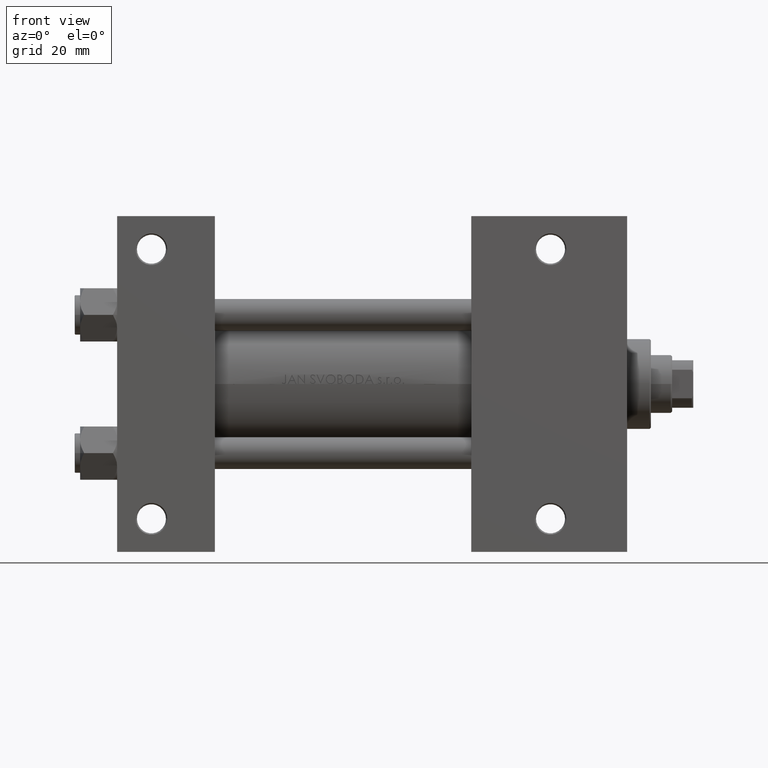
[diagram: clean part render]
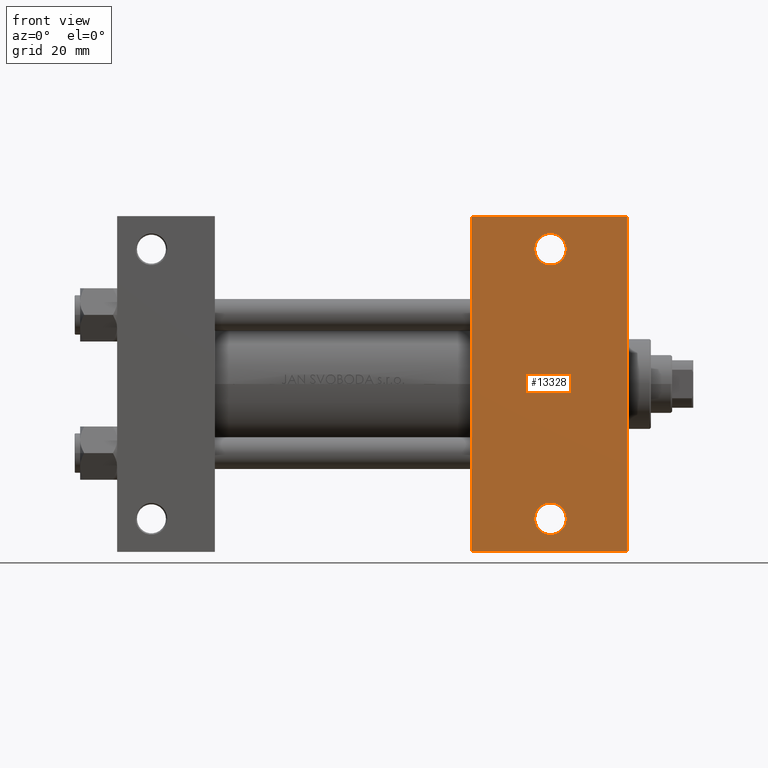
[diagram: same view with one face highlighted and labeled with its STEP entity id]
A machine part, front view. The second image highlights one B-rep face of the part: STEP entity #13328.
In plain terms, the highlighted planar face has unit normal (0, -1, 0).
Its self-contained STEP definition (entity closure, byte-faithful):
#227 = VERTEX_POINT ( 'NONE', #4635 ) ;
#472 = EDGE_CURVE ( 'NONE', #31669, #20908, #9980, .T. ) ;
#1607 = ORIENTED_EDGE ( 'NONE', *, *, #43744, .T. ) ;
#3043 = FACE_BOUND ( 'NONE', #32743, .T. ) ;
#4635 = CARTESIAN_POINT ( 'NONE',  ( 169.9995000000000118, -51.00000000000000711, -37.50000000000000000 ) ) ;
#5012 = ORIENTED_EDGE ( 'NONE', *, *, #23053, .T. ) ;
#5893 = EDGE_LOOP ( 'NONE', ( #11838, #5012 ) ) ;
#6413 = CIRCLE ( 'NONE', #11167, 5.999499999999990507 ) ;
#7523 = DIRECTION ( 'NONE',  ( -1.000000000000000000, 0.000000000000000000, -0.000000000000000000 ) ) ;
#7728 = CARTESIAN_POINT ( 'NONE',  ( 193.0000000000000000, -63.50000000000002842, -37.50000000000000000 ) ) ;
#7740 = VERTEX_POINT ( 'NONE', #32663 ) ;
#7813 = LINE ( 'NONE', #26754, #37962 ) ;
#7937 = DIRECTION ( 'NONE',  ( -0.000000000000000000, -0.000000000000000000, 1.000000000000000000 ) ) ;
#8462 = DIRECTION ( 'NONE',  ( 0.000000000000000000, -1.000000000000000000, 0.000000000000000000 ) ) ;
#8798 = CARTESIAN_POINT ( 'NONE',  ( 134.0000000000000000, -63.50000000000000000, -37.50000000000000000 ) ) ;
#9980 = LINE ( 'NONE', #8798, #24156 ) ;
#11167 = AXIS2_PLACEMENT_3D ( 'NONE', #23570, #16318, #16562 ) ;
#11838 = ORIENTED_EDGE ( 'NONE', *, *, #13723, .T. ) ;
#12190 = CARTESIAN_POINT ( 'NONE',  ( 193.0000000000000000, 37.50000000000000000, -37.50000000000000000 ) ) ;
#12557 = ORIENTED_EDGE ( 'NONE', *, *, #45192, .T. ) ;
#13328 = ADVANCED_FACE ( 'NONE', ( #3043, #30197, #18222 ), #45378, .T. ) ;
#13723 = EDGE_CURVE ( 'NONE', #33640, #227, #6413, .T. ) ;
#13834 = VERTEX_POINT ( 'NONE', #28798 ) ;
#14900 = AXIS2_PLACEMENT_3D ( 'NONE', #30641, #42098, #15680 ) ;
#15680 = DIRECTION ( 'NONE',  ( -1.000000000000000000, 0.000000000000000000, 0.000000000000000000 ) ) ;
#16318 = DIRECTION ( 'NONE',  ( -0.000000000000000000, -0.000000000000000000, 1.000000000000000000 ) ) ;
#16562 = DIRECTION ( 'NONE',  ( -1.000000000000000000, 0.000000000000000000, 0.000000000000000000 ) ) ;
#16841 = VECTOR ( 'NONE', #8462, 1000.000000000000000 ) ;
#18003 = LINE ( 'NONE', #40692, #41323 ) ;
#18208 = ORIENTED_EDGE ( 'NONE', *, *, #472, .T. ) ;
#18222 = FACE_OUTER_BOUND ( 'NONE', #20517, .T. ) ;
#20481 = CIRCLE ( 'NONE', #14900, 5.999499999999990507 ) ;
#20517 = EDGE_LOOP ( 'NONE', ( #21504, #12557, #35937, #18208 ) ) ;
#20908 = VERTEX_POINT ( 'NONE', #34390 ) ;
#21004 = EDGE_CURVE ( 'NONE', #13834, #31669, #42831, .T. ) ;
#21504 = ORIENTED_EDGE ( 'NONE', *, *, #36997, .F. ) ;
#23053 = EDGE_CURVE ( 'NONE', #227, #33640, #25715, .T. ) ;
#23570 = CARTESIAN_POINT ( 'NONE',  ( 164.0000000000000284, -51.00000000000000711, -37.50000000000000000 ) ) ;
#24156 = VECTOR ( 'NONE', #25173, 1000.000000000000000 ) ;
#24192 = VERTEX_POINT ( 'NONE', #48743 ) ;
#24902 = AXIS2_PLACEMENT_3D ( 'NONE', #38813, #7937, #39058 ) ;
#25173 = DIRECTION ( 'NONE',  ( -1.000000000000000000, 4.704334850106595794E-16, -0.000000000000000000 ) ) ;
#25715 = CIRCLE ( 'NONE', #24902, 5.999499999999990507 ) ;
#26464 = CARTESIAN_POINT ( 'NONE',  ( 193.0000000000000000, 37.50000000000000000, -37.50000000000000000 ) ) ;
#26754 = CARTESIAN_POINT ( 'NONE',  ( 134.0000000000000000, 37.50000000000000000, -37.50000000000000000 ) ) ;
#28798 = CARTESIAN_POINT ( 'NONE',  ( 193.0000000000000284, 63.50000000000000000, -37.50000000000000000 ) ) ;
#28962 = CARTESIAN_POINT ( 'NONE',  ( 164.0000000000000284, 51.00000000000000711, -37.50000000000000000 ) ) ;
#29208 = DIRECTION ( 'NONE',  ( -0.000000000000000000, -0.000000000000000000, 1.000000000000000000 ) ) ;
#29383 = AXIS2_PLACEMENT_3D ( 'NONE', #28962, #29208, #40652 ) ;
#30010 = DIRECTION ( 'NONE',  ( 0.000000000000000000, -1.000000000000000000, 0.000000000000000000 ) ) ;
#30197 = FACE_BOUND ( 'NONE', #5893, .T. ) ;
#30641 = CARTESIAN_POINT ( 'NONE',  ( 164.0000000000000284, 51.00000000000000711, -37.50000000000000000 ) ) ;
#31669 = VERTEX_POINT ( 'NONE', #7728 ) ;
#32663 = CARTESIAN_POINT ( 'NONE',  ( 134.0000000000000284, 63.49999999999997158, -37.50000000000000000 ) ) ;
#32743 = EDGE_LOOP ( 'NONE', ( #1607, #40733 ) ) ;
#33356 = CARTESIAN_POINT ( 'NONE',  ( 158.0005000000000450, -51.00000000000000711, -37.50000000000000000 ) ) ;
#33640 = VERTEX_POINT ( 'NONE', #33356 ) ;
#34390 = CARTESIAN_POINT ( 'NONE',  ( 134.0000000000000000, -63.50000000000000000, -37.50000000000000000 ) ) ;
#35937 = ORIENTED_EDGE ( 'NONE', *, *, #21004, .T. ) ;
#36641 = AXIS2_PLACEMENT_3D ( 'NONE', #26464, #41655, #7523 ) ;
#36997 = EDGE_CURVE ( 'NONE', #7740, #20908, #7813, .T. ) ;
#37962 = VECTOR ( 'NONE', #30010, 1000.000000000000000 ) ;
#38813 = CARTESIAN_POINT ( 'NONE',  ( 164.0000000000000284, -51.00000000000000711, -37.50000000000000000 ) ) ;
#39058 = DIRECTION ( 'NONE',  ( -1.000000000000000000, 0.000000000000000000, 0.000000000000000000 ) ) ;
#39809 = EDGE_CURVE ( 'NONE', #40408, #24192, #20481, .T. ) ;
#40408 = VERTEX_POINT ( 'NONE', #49188 ) ;
#40494 = CIRCLE ( 'NONE', #29383, 5.999499999999990507 ) ;
#40652 = DIRECTION ( 'NONE',  ( -1.000000000000000000, 0.000000000000000000, 0.000000000000000000 ) ) ;
#40692 = CARTESIAN_POINT ( 'NONE',  ( 134.0000000000000284, 63.49999999999997158, -37.50000000000000000 ) ) ;
#40733 = ORIENTED_EDGE ( 'NONE', *, *, #39809, .T. ) ;
#40934 = DIRECTION ( 'NONE',  ( 1.000000000000000000, 4.704334850106595794E-16, 0.000000000000000000 ) ) ;
#41323 = VECTOR ( 'NONE', #40934, 1000.000000000000000 ) ;
#41655 = DIRECTION ( 'NONE',  ( 0.000000000000000000, 0.000000000000000000, -1.000000000000000000 ) ) ;
#42098 = DIRECTION ( 'NONE',  ( -0.000000000000000000, -0.000000000000000000, 1.000000000000000000 ) ) ;
#42831 = LINE ( 'NONE', #12190, #16841 ) ;
#43744 = EDGE_CURVE ( 'NONE', #24192, #40408, #40494, .T. ) ;
#45192 = EDGE_CURVE ( 'NONE', #7740, #13834, #18003, .T. ) ;
#45378 = PLANE ( 'NONE',  #36641 ) ;
#48743 = CARTESIAN_POINT ( 'NONE',  ( 158.0005000000000450, 51.00000000000000711, -37.50000000000000000 ) ) ;
#49188 = CARTESIAN_POINT ( 'NONE',  ( 169.9995000000000118, 51.00000000000000711, -37.50000000000000000 ) ) ;